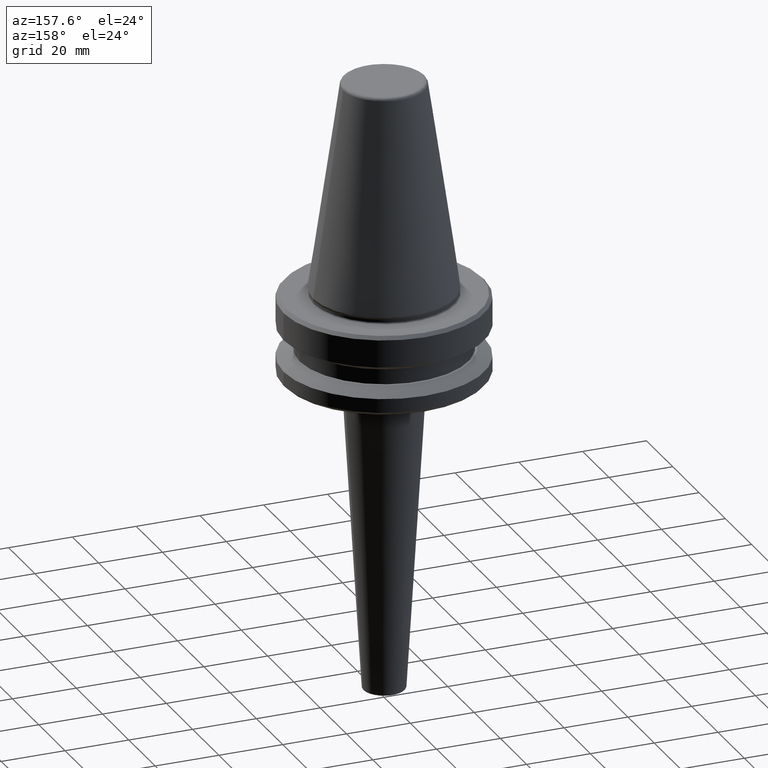
[diagram: clean part render]
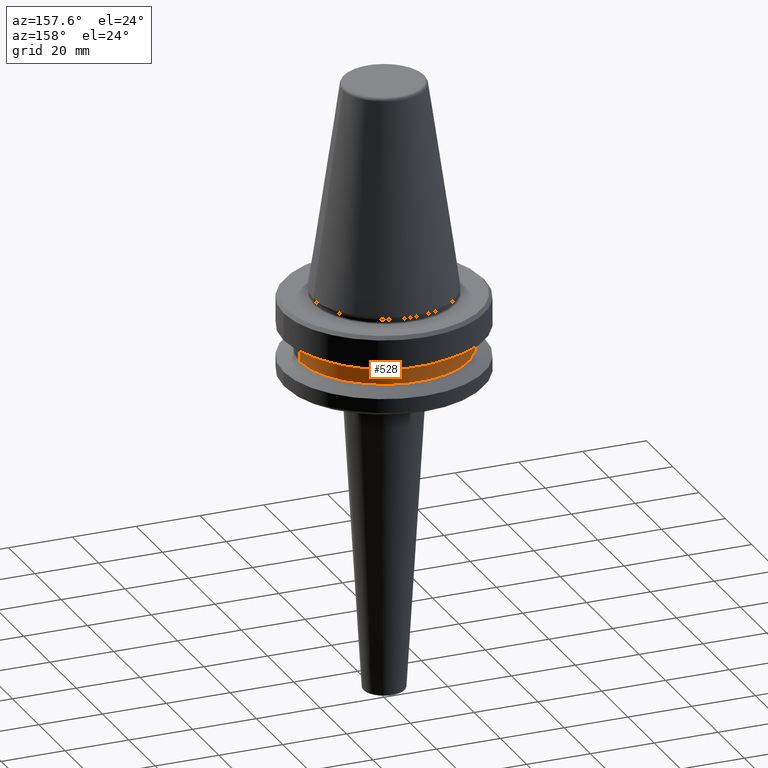
[diagram: same view with one face highlighted and labeled with its STEP entity id]
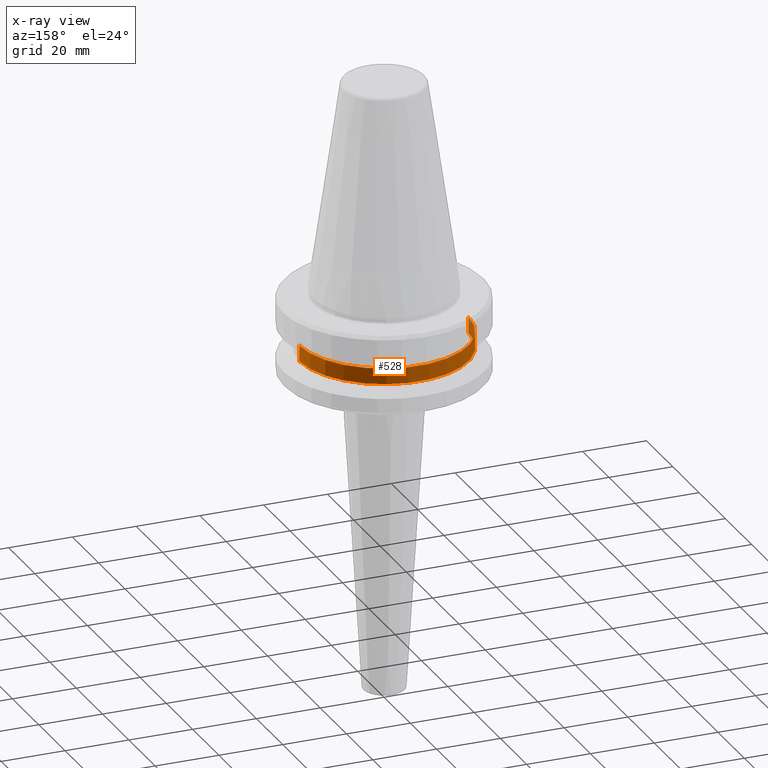
[diagram: x-ray of the same camera — body ghosted, the highlighted face saturated]
A machine part, auxiliary view. The second image highlights one B-rep face of the part: STEP entity #528.
The next image is the same camera in x-ray: the body ghosted, the highlighted face saturated — about 3% of this face is hidden behind the body in this view.
In plain terms, the highlighted cylindrical surface (partial cylindrical patch) has radius 26.5 mm, axis along (-0, -0, 1).
Its self-contained STEP definition (entity closure, byte-faithful):
#14 = CIRCLE ( 'NONE', #1045, 26.50000000000019200 ) ;
#17 = CARTESIAN_POINT ( 'NONE',  ( 26.50000000000019200, 0.0000000000000000000, -84.50000000000068200 ) ) ;
#91 = CARTESIAN_POINT ( 'NONE',  ( 0.0000000000000000000, 0.0000000000000000000, -84.50000000000068200 ) ) ;
#155 = DIRECTION ( 'NONE',  ( 1.000000000000000000, 0.0000000000000000000, 0.0000000000000000000 ) ) ;
#179 = CARTESIAN_POINT ( 'NONE',  ( -26.50000000000019200, 3.245314017740509400E-015, -79.50000000000012800 ) ) ;
#233 = VECTOR ( 'NONE', #660, 1000.000000000000000 ) ;
#240 = DIRECTION ( 'NONE',  ( -0.0000000000000000000, -0.0000000000000000000, 1.000000000000000000 ) ) ;
#242 = EDGE_CURVE ( 'NONE', #645, #912, #497, .T. ) ;
#251 = CIRCLE ( 'NONE', #719, 26.50000000000019200 ) ;
#269 = DIRECTION ( 'NONE',  ( 1.000000000000000000, 0.0000000000000000000, 0.0000000000000000000 ) ) ;
#303 = VERTEX_POINT ( 'NONE', #179 ) ;
#346 = DIRECTION ( 'NONE',  ( -0.0000000000000000000, -0.0000000000000000000, 1.000000000000000000 ) ) ;
#462 = EDGE_LOOP ( 'NONE', ( #616, #523, #805, #491 ) ) ;
#488 = AXIS2_PLACEMENT_3D ( 'NONE', #797, #346, #269 ) ;
#491 = ORIENTED_EDGE ( 'NONE', *, *, #242, .F. ) ;
#497 = LINE ( 'NONE', #676, #655 ) ;
#513 = CARTESIAN_POINT ( 'NONE',  ( -26.50000000000019200, 3.245314017740509400E-015, -84.50000000000068200 ) ) ;
#523 = ORIENTED_EDGE ( 'NONE', *, *, #1017, .T. ) ;
#528 = ADVANCED_FACE ( 'NONE', ( #889 ), #866, .T. ) ;
#529 = CARTESIAN_POINT ( 'NONE',  ( 26.50000000000019200, 0.0000000000000000000, -79.50000000000012800 ) ) ;
#552 = DIRECTION ( 'NONE',  ( -0.0000000000000000000, -0.0000000000000000000, 1.000000000000000000 ) ) ;
#616 = ORIENTED_EDGE ( 'NONE', *, *, #1004, .T. ) ;
#645 = VERTEX_POINT ( 'NONE', #17 ) ;
#655 = VECTOR ( 'NONE', #240, 1000.000000000000000 ) ;
#660 = DIRECTION ( 'NONE',  ( -0.0000000000000000000, -0.0000000000000000000, 1.000000000000000000 ) ) ;
#676 = CARTESIAN_POINT ( 'NONE',  ( 26.50000000000019200, 0.0000000000000000000, 6.357346922996331500 ) ) ;
#693 = CARTESIAN_POINT ( 'NONE',  ( -26.50000000000019200, 3.245314017740509400E-015, 6.357346922996331500 ) ) ;
#719 = AXIS2_PLACEMENT_3D ( 'NONE', #91, #552, #954 ) ;
#797 = CARTESIAN_POINT ( 'NONE',  ( 0.0000000000000000000, 0.0000000000000000000, 6.357346922996331500 ) ) ;
#805 = ORIENTED_EDGE ( 'NONE', *, *, #1030, .F. ) ;
#866 = CYLINDRICAL_SURFACE ( 'NONE', #488, 26.50000000000019200 ) ;
#880 = LINE ( 'NONE', #693, #233 ) ;
#885 = VERTEX_POINT ( 'NONE', #513 ) ;
#887 = CARTESIAN_POINT ( 'NONE',  ( 0.0000000000000000000, 0.0000000000000000000, -79.50000000000012800 ) ) ;
#889 = FACE_OUTER_BOUND ( 'NONE', #462, .T. ) ;
#912 = VERTEX_POINT ( 'NONE', #529 ) ;
#954 = DIRECTION ( 'NONE',  ( 1.000000000000000000, 0.0000000000000000000, 0.0000000000000000000 ) ) ;
#969 = DIRECTION ( 'NONE',  ( -0.0000000000000000000, -0.0000000000000000000, 1.000000000000000000 ) ) ;
#1004 = EDGE_CURVE ( 'NONE', #645, #885, #251, .T. ) ;
#1017 = EDGE_CURVE ( 'NONE', #885, #303, #880, .T. ) ;
#1030 = EDGE_CURVE ( 'NONE', #912, #303, #14, .T. ) ;
#1045 = AXIS2_PLACEMENT_3D ( 'NONE', #887, #969, #155 ) ;